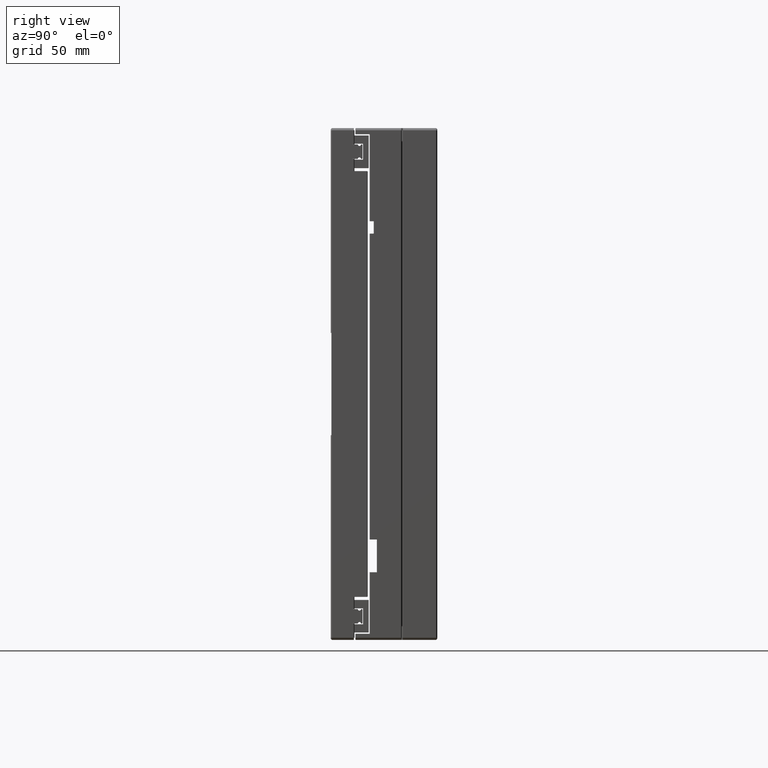
[diagram: clean part render]
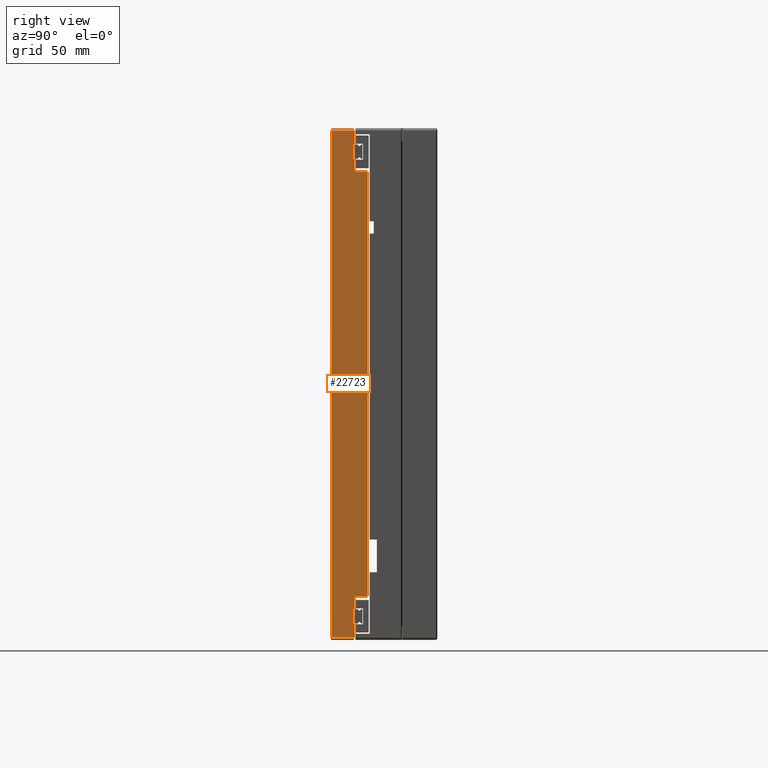
[diagram: same view with one face highlighted and labeled with its STEP entity id]
A machine part, right view. The second image highlights one B-rep face of the part: STEP entity #22723.
In plain terms, the highlighted planar face has unit normal (-1, 0, 0).
Its self-contained STEP definition (entity closure, byte-faithful):
#203 = VECTOR ( 'NONE', #1016, 1000.000000000000000 ) ;
#252 = CARTESIAN_POINT ( 'NONE',  ( -52.04777213772141000, 0.4999999999999311700, 248.9999999999998900 ) ) ;
#299 = DIRECTION ( 'NONE',  ( 0.0000000000000000000, 1.000000000000000000, 1.224646799147353200E-016 ) ) ;
#453 = EDGE_CURVE ( 'NONE', #2729, #20897, #7537, .T. ) ;
#640 = VERTEX_POINT ( 'NONE', #16579 ) ;
#653 = CARTESIAN_POINT ( 'NONE',  ( -52.04777213772141000, 11.30000000000001100, 228.9999999999999400 ) ) ;
#737 = VERTEX_POINT ( 'NONE', #653 ) ;
#752 = ORIENTED_EDGE ( 'NONE', *, *, #453, .F. ) ;
#1016 = DIRECTION ( 'NONE',  ( 0.0000000000000000000, 1.000000000000000000, 1.224646799147353200E-016 ) ) ;
#1253 = ORIENTED_EDGE ( 'NONE', *, *, #16354, .T. ) ;
#1295 = VERTEX_POINT ( 'NONE', #10283 ) ;
#1442 = EDGE_CURVE ( 'NONE', #21540, #8917, #14969, .T. ) ;
#1649 = CARTESIAN_POINT ( 'NONE',  ( -52.04777213772141000, 10.99999999999998800, 241.9999999999999400 ) ) ;
#1660 = CARTESIAN_POINT ( 'NONE',  ( -52.04777213772141000, 0.4999999999999615300, 0.9999999999999592500 ) ) ;
#1699 = LINE ( 'NONE', #5928, #6344 ) ;
#1702 = LINE ( 'NONE', #12575, #14351 ) ;
#1719 = DIRECTION ( 'NONE',  ( 0.0000000000000000000, 1.000000000000000000, 1.224646799147353200E-016 ) ) ;
#1807 = AXIS2_PLACEMENT_3D ( 'NONE', #8853, #11225, #299 ) ;
#1826 = CARTESIAN_POINT ( 'NONE',  ( -52.04777213772141000, 0.4999999999999433200, 149.9999999999999700 ) ) ;
#1920 = LINE ( 'NONE', #3673, #2813 ) ;
#2181 = EDGE_CURVE ( 'NONE', #640, #7122, #21569, .T. ) ;
#2214 = EDGE_CURVE ( 'NONE', #1295, #6607, #1699, .T. ) ;
#2560 = CARTESIAN_POINT ( 'NONE',  ( -52.04777213772141000, 11.00000000000001400, 7.999999999999965400 ) ) ;
#2729 = VERTEX_POINT ( 'NONE', #14512 ) ;
#2813 = VECTOR ( 'NONE', #5523, 1000.000000000000000 ) ;
#2900 = ORIENTED_EDGE ( 'NONE', *, *, #10033, .T. ) ;
#3154 = VECTOR ( 'NONE', #21117, 1000.000000000000000 ) ;
#3387 = ORIENTED_EDGE ( 'NONE', *, *, #1442, .T. ) ;
#3436 = VECTOR ( 'NONE', #20280, 1000.000000000000000 ) ;
#3673 = CARTESIAN_POINT ( 'NONE',  ( -52.04777213772141000, 11.00000000000001400, 14.99999999999997200 ) ) ;
#3820 = VECTOR ( 'NONE', #5602, 1000.000000000000000 ) ;
#3840 = CARTESIAN_POINT ( 'NONE',  ( -52.04777213772141000, 11.30000000000003600, 20.99999999999997900 ) ) ;
#4231 = VECTOR ( 'NONE', #23737, 1000.000000000000000 ) ;
#4794 = EDGE_CURVE ( 'NONE', #737, #20897, #1702, .T. ) ;
#4903 = LINE ( 'NONE', #6446, #3154 ) ;
#4947 = VECTOR ( 'NONE', #1719, 1000.000000000000000 ) ;
#5221 = EDGE_CURVE ( 'NONE', #7789, #2729, #4903, .T. ) ;
#5523 = DIRECTION ( 'NONE',  ( 0.0000000000000000000, 1.224646799147353200E-016, -1.000000000000000000 ) ) ;
#5602 = DIRECTION ( 'NONE',  ( 0.0000000000000000000, 1.000000000000000000, 1.224646799147353200E-016 ) ) ;
#5846 = DIRECTION ( 'NONE',  ( 0.0000000000000000000, -1.224646799147353200E-016, 1.000000000000000000 ) ) ;
#5865 = EDGE_CURVE ( 'NONE', #7695, #10865, #16040, .T. ) ;
#5906 = EDGE_CURVE ( 'NONE', #20672, #7582, #1920, .T. ) ;
#5928 = CARTESIAN_POINT ( 'NONE',  ( -52.04777213772141000, 17.80000000000000800, 249.9999999999999400 ) ) ;
#6344 = VECTOR ( 'NONE', #5846, 1000.000000000000000 ) ;
#6446 = CARTESIAN_POINT ( 'NONE',  ( -52.04777213772141000, 10.99999999999998800, 234.9999999999999400 ) ) ;
#6574 = EDGE_CURVE ( 'NONE', #8917, #16564, #16568, .T. ) ;
#6607 = VERTEX_POINT ( 'NONE', #14913 ) ;
#7122 = VERTEX_POINT ( 'NONE', #17610 ) ;
#7144 = LINE ( 'NONE', #17266, #203 ) ;
#7322 = EDGE_CURVE ( 'NONE', #18602, #21540, #23773, .T. ) ;
#7417 = CARTESIAN_POINT ( 'NONE',  ( -52.04777213772141000, 11.30000000000000800, 249.9999999999999400 ) ) ;
#7537 = LINE ( 'NONE', #19986, #12412 ) ;
#7582 = VERTEX_POINT ( 'NONE', #2560 ) ;
#7649 = ORIENTED_EDGE ( 'NONE', *, *, #2214, .T. ) ;
#7695 = VERTEX_POINT ( 'NONE', #11928 ) ;
#7789 = VERTEX_POINT ( 'NONE', #1649 ) ;
#8022 = VECTOR ( 'NONE', #16649, 1000.000000000000000 ) ;
#8830 = LINE ( 'NONE', #8994, #13397 ) ;
#8853 = CARTESIAN_POINT ( 'NONE',  ( -52.04777213772141000, 17.99999999999998600, 249.9999999999999400 ) ) ;
#8917 = VERTEX_POINT ( 'NONE', #20038 ) ;
#8994 = CARTESIAN_POINT ( 'NONE',  ( -52.04777213772141000, 11.00000000000001400, 7.999999999999965400 ) ) ;
#9103 = VECTOR ( 'NONE', #15068, 1000.000000000000000 ) ;
#9784 = CARTESIAN_POINT ( 'NONE',  ( -52.04777213772141000, 11.30000000000003800, 7.999999999999965400 ) ) ;
#10033 = EDGE_CURVE ( 'NONE', #7122, #1295, #15511, .T. ) ;
#10065 = ORIENTED_EDGE ( 'NONE', *, *, #7322, .T. ) ;
#10283 = CARTESIAN_POINT ( 'NONE',  ( -52.04777213772141000, 17.80000000000003300, 20.99999999999997900 ) ) ;
#10332 = DIRECTION ( 'NONE',  ( 0.0000000000000000000, -1.000000000000000000, -1.224646799147353200E-016 ) ) ;
#10744 = DIRECTION ( 'NONE',  ( 0.0000000000000000000, 1.000000000000000000, 1.224646799147353200E-016 ) ) ;
#10865 = VERTEX_POINT ( 'NONE', #15958 ) ;
#11225 = DIRECTION ( 'NONE',  ( -1.000000000000000000, 0.0000000000000000000, 0.0000000000000000000 ) ) ;
#11639 = EDGE_CURVE ( 'NONE', #20672, #640, #22094, .T. ) ;
#11928 = CARTESIAN_POINT ( 'NONE',  ( -52.04777213772141000, 11.30000000000001000, 241.9999999999999400 ) ) ;
#12096 = ORIENTED_EDGE ( 'NONE', *, *, #6574, .T. ) ;
#12189 = ORIENTED_EDGE ( 'NONE', *, *, #19697, .F. ) ;
#12194 = EDGE_CURVE ( 'NONE', #7582, #16564, #8830, .T. ) ;
#12412 = VECTOR ( 'NONE', #15772, 1000.000000000000000 ) ;
#12487 = ORIENTED_EDGE ( 'NONE', *, *, #5906, .F. ) ;
#12575 = CARTESIAN_POINT ( 'NONE',  ( -52.04777213772141000, 11.30000000000000800, 249.9999999999999400 ) ) ;
#12603 = DIRECTION ( 'NONE',  ( 0.0000000000000000000, -1.224646799147353200E-016, 1.000000000000000000 ) ) ;
#13262 = VECTOR ( 'NONE', #10332, 1000.000000000000000 ) ;
#13288 = ORIENTED_EDGE ( 'NONE', *, *, #23312, .T. ) ;
#13397 = VECTOR ( 'NONE', #10744, 1000.000000000000000 ) ;
#14088 = CARTESIAN_POINT ( 'NONE',  ( -52.04777213772141000, 17.99999999999998600, 248.9999999999998900 ) ) ;
#14351 = VECTOR ( 'NONE', #23717, 1000.000000000000000 ) ;
#14512 = CARTESIAN_POINT ( 'NONE',  ( -52.04777213772141000, 10.99999999999998800, 234.9999999999999400 ) ) ;
#14840 = ORIENTED_EDGE ( 'NONE', *, *, #4794, .T. ) ;
#14913 = CARTESIAN_POINT ( 'NONE',  ( -52.04777213772141000, 17.80000000000000400, 228.9999999999999400 ) ) ;
#14969 = LINE ( 'NONE', #18269, #3820 ) ;
#15068 = DIRECTION ( 'NONE',  ( 0.0000000000000000000, -1.224646799147353200E-016, 1.000000000000000000 ) ) ;
#15405 = ORIENTED_EDGE ( 'NONE', *, *, #5865, .T. ) ;
#15511 = LINE ( 'NONE', #22051, #23010 ) ;
#15525 = CARTESIAN_POINT ( 'NONE',  ( -52.04777213772141000, 11.00000000000001400, 14.99999999999997200 ) ) ;
#15772 = DIRECTION ( 'NONE',  ( 0.0000000000000000000, 1.000000000000000000, 1.224646799147353200E-016 ) ) ;
#15873 = LINE ( 'NONE', #14088, #13262 ) ;
#15958 = CARTESIAN_POINT ( 'NONE',  ( -52.04777213772141000, 11.30000000000000800, 248.9999999999998900 ) ) ;
#16040 = LINE ( 'NONE', #7417, #22375 ) ;
#16354 = EDGE_CURVE ( 'NONE', #10865, #18602, #15873, .T. ) ;
#16376 = CARTESIAN_POINT ( 'NONE',  ( -52.04777213772141000, 10.99999999999998800, 241.9999999999999400 ) ) ;
#16564 = VERTEX_POINT ( 'NONE', #16760 ) ;
#16568 = LINE ( 'NONE', #9784, #9103 ) ;
#16579 = CARTESIAN_POINT ( 'NONE',  ( -52.04777213772141000, 11.30000000000003800, 14.99999999999997200 ) ) ;
#16649 = DIRECTION ( 'NONE',  ( 0.0000000000000000000, -1.224646799147353200E-016, 1.000000000000000000 ) ) ;
#16760 = CARTESIAN_POINT ( 'NONE',  ( -52.04777213772141000, 11.30000000000003800, 7.999999999999965400 ) ) ;
#17266 = CARTESIAN_POINT ( 'NONE',  ( -52.04777213772141000, 11.49999999999998900, 228.9999999999999400 ) ) ;
#17596 = ORIENTED_EDGE ( 'NONE', *, *, #12194, .F. ) ;
#17610 = CARTESIAN_POINT ( 'NONE',  ( -52.04777213772141000, 11.30000000000003600, 20.99999999999997900 ) ) ;
#18174 = DIRECTION ( 'NONE',  ( 0.0000000000000000000, 1.000000000000000000, 1.224646799147353200E-016 ) ) ;
#18269 = CARTESIAN_POINT ( 'NONE',  ( -52.04777213772141000, 18.00000000000001400, 0.9999999999999592500 ) ) ;
#18602 = VERTEX_POINT ( 'NONE', #252 ) ;
#18718 = LINE ( 'NONE', #16376, #4947 ) ;
#18741 = FACE_OUTER_BOUND ( 'NONE', #23201, .T. ) ;
#18767 = ORIENTED_EDGE ( 'NONE', *, *, #11639, .T. ) ;
#19652 = ORIENTED_EDGE ( 'NONE', *, *, #2181, .T. ) ;
#19697 = EDGE_CURVE ( 'NONE', #737, #6607, #7144, .T. ) ;
#19862 = PLANE ( 'NONE',  #1807 ) ;
#19986 = CARTESIAN_POINT ( 'NONE',  ( -52.04777213772141000, 10.99999999999998800, 234.9999999999999400 ) ) ;
#20038 = CARTESIAN_POINT ( 'NONE',  ( -52.04777213772141000, 11.30000000000004000, 0.9999999999999592500 ) ) ;
#20280 = DIRECTION ( 'NONE',  ( 0.0000000000000000000, 1.000000000000000000, 1.224646799147353200E-016 ) ) ;
#20672 = VERTEX_POINT ( 'NONE', #15525 ) ;
#20897 = VERTEX_POINT ( 'NONE', #21655 ) ;
#21117 = DIRECTION ( 'NONE',  ( 0.0000000000000000000, 1.224646799147353200E-016, -1.000000000000000000 ) ) ;
#21540 = VERTEX_POINT ( 'NONE', #1660 ) ;
#21569 = LINE ( 'NONE', #3840, #8022 ) ;
#21655 = CARTESIAN_POINT ( 'NONE',  ( -52.04777213772141000, 11.30000000000001000, 234.9999999999999400 ) ) ;
#22051 = CARTESIAN_POINT ( 'NONE',  ( -52.04777213772141000, 11.50000000000001400, 20.99999999999997900 ) ) ;
#22094 = LINE ( 'NONE', #22133, #3436 ) ;
#22133 = CARTESIAN_POINT ( 'NONE',  ( -52.04777213772141000, 11.00000000000001400, 14.99999999999997200 ) ) ;
#22375 = VECTOR ( 'NONE', #12603, 1000.000000000000000 ) ;
#22552 = ORIENTED_EDGE ( 'NONE', *, *, #5221, .F. ) ;
#22723 = ADVANCED_FACE ( 'NONE', ( #18741 ), #19862, .F. ) ;
#23010 = VECTOR ( 'NONE', #18174, 1000.000000000000000 ) ;
#23201 = EDGE_LOOP ( 'NONE', ( #13288, #15405, #1253, #10065, #3387, #12096, #17596, #12487, #18767, #19652, #2900, #7649, #12189, #14840, #752, #22552 ) ) ;
#23312 = EDGE_CURVE ( 'NONE', #7789, #7695, #18718, .T. ) ;
#23717 = DIRECTION ( 'NONE',  ( 0.0000000000000000000, -1.224646799147353200E-016, 1.000000000000000000 ) ) ;
#23737 = DIRECTION ( 'NONE',  ( 0.0000000000000000000, 1.224646799147353200E-016, -1.000000000000000000 ) ) ;
#23773 = LINE ( 'NONE', #1826, #4231 ) ;